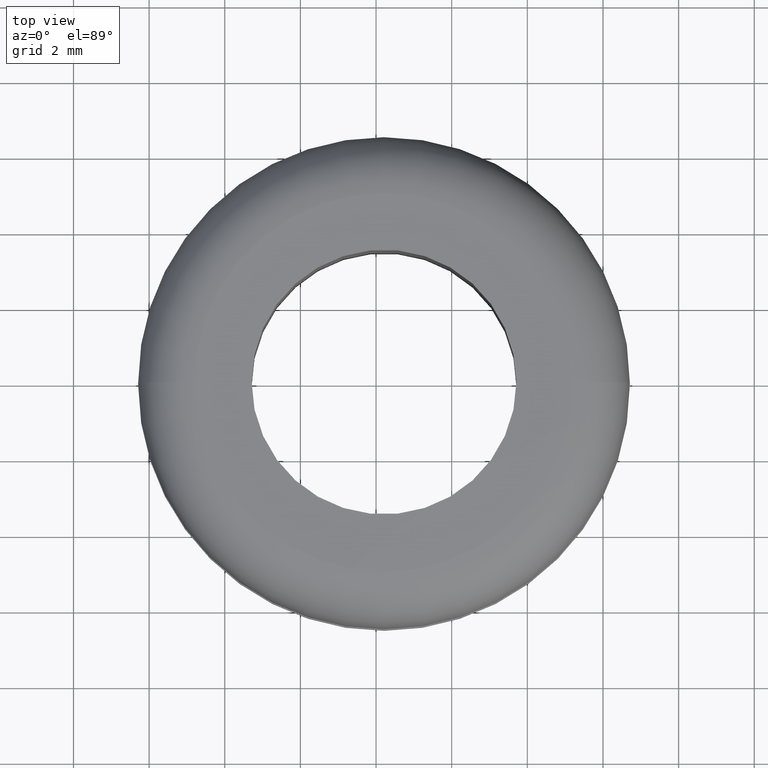
[diagram: clean part render]
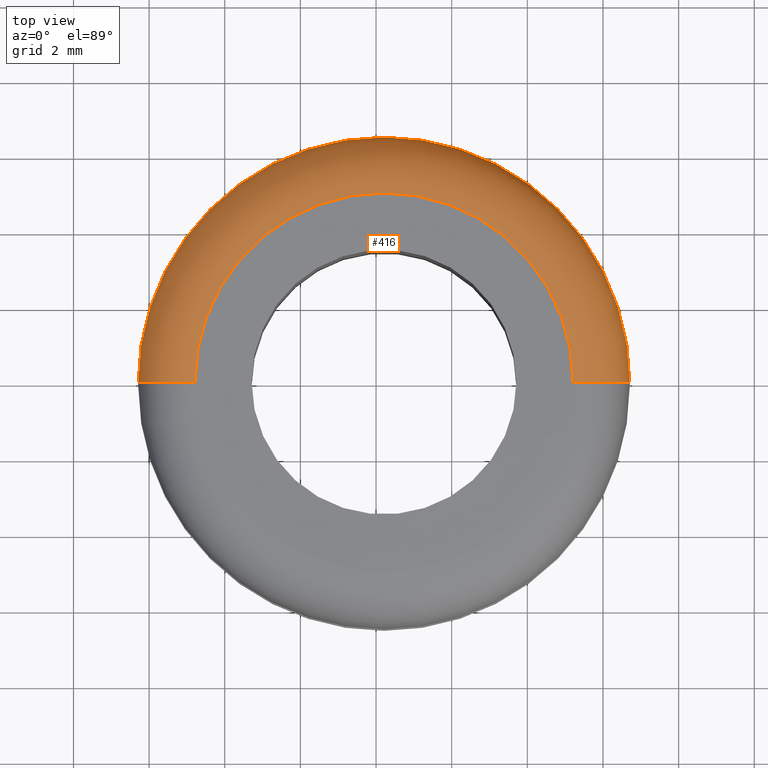
[diagram: same view with one face highlighted and labeled with its STEP entity id]
A machine part, top view. The second image highlights one B-rep face of the part: STEP entity #416.
In plain terms, the highlighted toroidal blend (fillet) surface has major radius 5 mm and minor (blend) radius 1.5 mm.
Its self-contained STEP definition (entity closure, byte-faithful):
#4 = DIRECTION ( 'NONE',  ( 0.0000000000000000000, 0.0000000000000000000, -1.000000000000000000 ) ) ;
#10 = VERTEX_POINT ( 'NONE', #156 ) ;
#12 = DIRECTION ( 'NONE',  ( -1.000000000000000000, 0.0000000000000000000, 0.0000000000000000000 ) ) ;
#19 = AXIS2_PLACEMENT_3D ( 'NONE', #220, #447, #409 ) ;
#22 = CARTESIAN_POINT ( 'NONE',  ( 109.2104937855071000, 7.041719095121637900E-016, 143.9985603604342000 ) ) ;
#31 = DIRECTION ( 'NONE',  ( -1.000000000000000000, 0.0000000000000000000, 0.0000000000000000000 ) ) ;
#33 = VERTEX_POINT ( 'NONE', #337 ) ;
#35 = TOROIDAL_SURFACE ( 'NONE', #394, 5.000000000019890800, 1.500000000000000000 ) ;
#45 = ORIENTED_EDGE ( 'NONE', *, *, #279, .F. ) ;
#63 = DIRECTION ( 'NONE',  ( -0.0000000000000000000, -1.000000000000000000, -0.0000000000000000000 ) ) ;
#65 = AXIS2_PLACEMENT_3D ( 'NONE', #116, #63, #4 ) ;
#69 = DIRECTION ( 'NONE',  ( 0.0000000000000000000, 0.0000000000000000000, -1.000000000000000000 ) ) ;
#82 = VERTEX_POINT ( 'NONE', #232 ) ;
#93 = CIRCLE ( 'NONE', #65, 1.500000000000001300 ) ;
#95 = DIRECTION ( 'NONE',  ( -1.224646799147353200E-016, 1.000000000000000000, 0.0000000000000000000 ) ) ;
#116 = CARTESIAN_POINT ( 'NONE',  ( 99.21049378546730700, 0.0000000000000000000, 142.4985603604342000 ) ) ;
#120 = EDGE_CURVE ( 'NONE', #33, #338, #449, .T. ) ;
#125 = CARTESIAN_POINT ( 'NONE',  ( 109.2104937855071000, 6.123233995761125300E-016, 142.4985603604342000 ) ) ;
#156 = CARTESIAN_POINT ( 'NONE',  ( 110.7104937855071000, 7.960204194482149600E-016, 142.4985603604342000 ) ) ;
#173 = ORIENTED_EDGE ( 'NONE', *, *, #227, .F. ) ;
#174 = EDGE_CURVE ( 'NONE', #338, #10, #434, .T. ) ;
#192 = AXIS2_PLACEMENT_3D ( 'NONE', #271, #207, #12 ) ;
#207 = DIRECTION ( 'NONE',  ( 0.0000000000000000000, 0.0000000000000000000, -1.000000000000000000 ) ) ;
#220 = CARTESIAN_POINT ( 'NONE',  ( 104.2104937854872000, 0.0000000000000000000, 142.4985603604342000 ) ) ;
#227 = EDGE_CURVE ( 'NONE', #82, #10, #331, .T. ) ;
#232 = CARTESIAN_POINT ( 'NONE',  ( 97.71049378546730700, 0.0000000000000000000, 142.4985603604342000 ) ) ;
#271 = CARTESIAN_POINT ( 'NONE',  ( 104.2104937854872000, 0.0000000000000000000, 143.9985603604342000 ) ) ;
#279 = EDGE_CURVE ( 'NONE', #33, #82, #93, .T. ) ;
#283 = EDGE_LOOP ( 'NONE', ( #448, #435, #173, #45 ) ) ;
#317 = FACE_OUTER_BOUND ( 'NONE', #283, .T. ) ;
#331 = CIRCLE ( 'NONE', #19, 6.500000000019892500 ) ;
#337 = CARTESIAN_POINT ( 'NONE',  ( 99.21049378546730700, 0.0000000000000000000, 143.9985603604342000 ) ) ;
#338 = VERTEX_POINT ( 'NONE', #22 ) ;
#389 = AXIS2_PLACEMENT_3D ( 'NONE', #125, #95, #392 ) ;
#392 = DIRECTION ( 'NONE',  ( -1.000000000000000000, -1.224646799147352000E-016, 0.0000000000000000000 ) ) ;
#394 = AXIS2_PLACEMENT_3D ( 'NONE', #469, #69, #31 ) ;
#409 = DIRECTION ( 'NONE',  ( -1.000000000000000000, 0.0000000000000000000, 0.0000000000000000000 ) ) ;
#416 = ADVANCED_FACE ( 'NONE', ( #317 ), #35, .T. ) ;
#434 = CIRCLE ( 'NONE', #389, 1.500000000000001300 ) ;
#435 = ORIENTED_EDGE ( 'NONE', *, *, #174, .T. ) ;
#447 = DIRECTION ( 'NONE',  ( 0.0000000000000000000, 0.0000000000000000000, -1.000000000000000000 ) ) ;
#448 = ORIENTED_EDGE ( 'NONE', *, *, #120, .T. ) ;
#449 = CIRCLE ( 'NONE', #192, 5.000000000019891600 ) ;
#469 = CARTESIAN_POINT ( 'NONE',  ( 104.2104937854872000, 0.0000000000000000000, 142.4985603604342000 ) ) ;